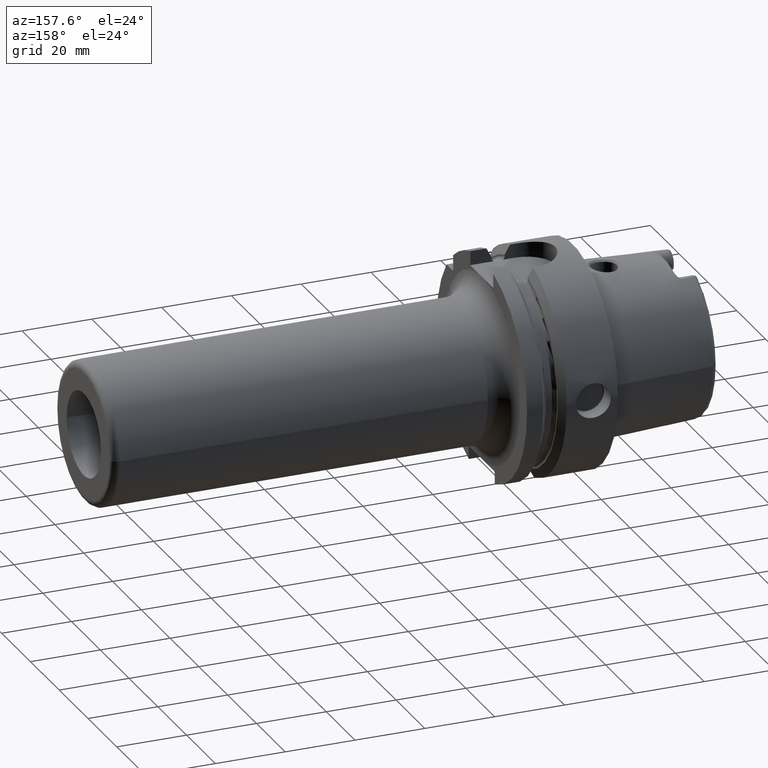
[diagram: clean part render]
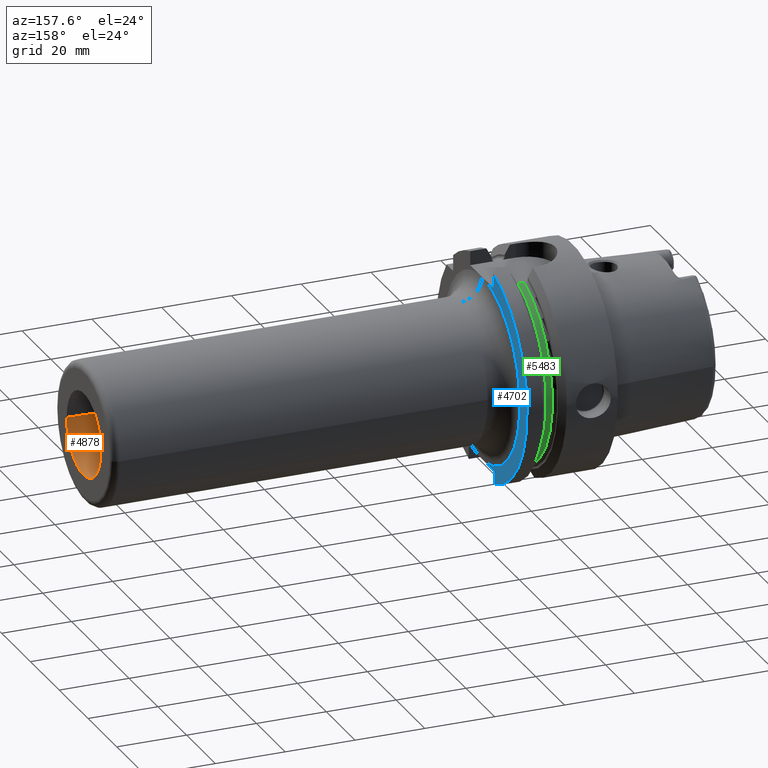
[diagram: same view with three faces highlighted in distinct colors, each labeled with its STEP entity id]
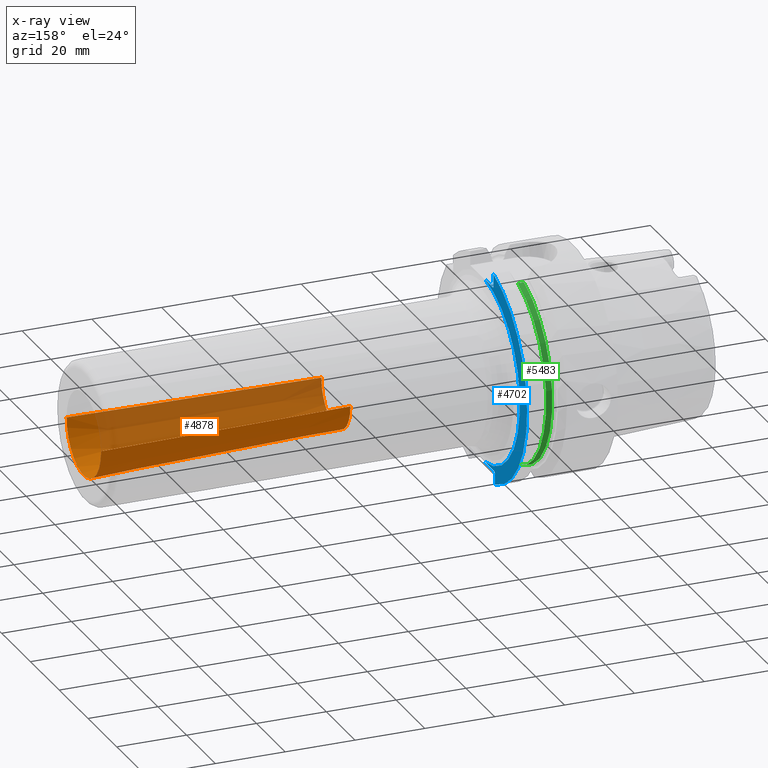
[diagram: x-ray of the same camera — body ghosted, the three highlighted faces saturated]
A machine part, auxiliary view with three faces highlighted in distinct colors.
The next image is the same camera in x-ray (body ghosted, the three faces saturated) — at least one of them is partly hidden behind the body in this view.
Their STEP definitions:

[orange] entity #4878 — the highlighted conical surface has half-angle 1.438 deg.
#1639=CARTESIAN_POINT('',(1.4E2,0.E0,0.E0));
#1640=DIRECTION('',(1.E0,0.E0,0.E0));
#1641=DIRECTION('',(0.E0,-1.E0,0.E0));
#1642=AXIS2_PLACEMENT_3D('',#1639,#1640,#1641);
#1644=DIRECTION('',(-9.996851534728E-1,2.509171030754E-2,0.E0));
#1645=VECTOR('',#1644,7.223501219267E1);
#1646=CARTESIAN_POINT('',(1.4E2,-1.19125E1,0.E0));
#1647=LINE('',#1646,#1645);
#1648=DIRECTION('',(-9.996851534728E-1,-2.509171030754E-2,0.E0));
#1649=VECTOR('',#1648,7.223501219267E1);
#1650=CARTESIAN_POINT('',(1.4E2,1.19125E1,0.E0));
#1651=LINE('',#1650,#1649);
#1656=CARTESIAN_POINT('',(6.778773075006E1,0.E0,0.E0));
#1657=DIRECTION('',(-1.E0,0.E0,0.E0));
#1658=DIRECTION('',(0.E0,1.E0,0.E0));
#1659=AXIS2_PLACEMENT_3D('',#1656,#1657,#1658);
#3109=CARTESIAN_POINT('',(6.778773075006E1,1.01E1,0.E0));
#3111=VERTEX_POINT('',#3109);
#3113=CARTESIAN_POINT('',(6.778773075006E1,-1.01E1,0.E0));
#3115=VERTEX_POINT('',#3113);
#3117=CARTESIAN_POINT('',(1.4E2,1.19125E1,0.E0));
#3118=CARTESIAN_POINT('',(1.4E2,-1.19125E1,0.E0));
#3119=VERTEX_POINT('',#3117);
#3120=VERTEX_POINT('',#3118);
#4866=CARTESIAN_POINT('',(1.038938653750E2,0.E0,0.E0));
#4867=DIRECTION('',(1.E0,0.E0,0.E0));
#4868=DIRECTION('',(0.E0,-1.E0,0.E0));
#4869=AXIS2_PLACEMENT_3D('',#4866,#4867,#4868);
#4870=CONICAL_SURFACE('',#4869,1.100625E1,1.4378E0);
#4871=ORIENTED_EDGE('',*,*,#4846,.F.);
#4872=ORIENTED_EDGE('',*,*,#4861,.T.);
#4874=ORIENTED_EDGE('',*,*,#4873,.F.);
#4875=ORIENTED_EDGE('',*,*,#4857,.F.);
#4876=EDGE_LOOP('',(#4871,#4872,#4874,#4875));
#4877=FACE_OUTER_BOUND('',#4876,.F.);
#4878=ADVANCED_FACE('',(#4877),#4870,.F.);
#1643=CIRCLE('',#1642,1.19125E1);
#1660=CIRCLE('',#1659,1.01E1);
#4846=EDGE_CURVE('',#3120,#3119,#1643,.T.);
#4857=EDGE_CURVE('',#3119,#3111,#1651,.T.);
#4861=EDGE_CURVE('',#3120,#3115,#1647,.T.);
#4873=EDGE_CURVE('',#3111,#3115,#1660,.T.);

[blue] entity #4702 — the highlighted planar face has unit normal (1, 0, 0).
#1343=DIRECTION('',(0.E0,7.071067811865E-1,-7.071067811866E-1));
#1344=VECTOR('',#1343,5.656854249492E-1);
#1345=CARTESIAN_POINT('',(2.6E1,8.6175E0,-2.64E1));
#1346=LINE('',#1345,#1344);
#1499=CARTESIAN_POINT('',(2.6E1,0.E0,0.E0));
#1500=DIRECTION('',(-1.E0,0.E0,0.E0));
#1501=DIRECTION('',(0.E0,8.679259900486E-2,9.962264023594E-1));
#1502=AXIS2_PLACEMENT_3D('',#1499,#1500,#1501);
#1504=DIRECTION('',(0.E0,1.E0,-5.947311325576E-8));
#1505=VECTOR('',#1504,5.717502602041E0);
#1506=CARTESIAN_POINT('',(2.6E1,2.299997397959E0,2.640000034004E1));
#1507=LINE('',#1506,#1505);
#1508=DIRECTION('',(0.E0,0.E0,-1.E0));
#1509=VECTOR('',#1508,4.062594993697E0);
#1510=CARTESIAN_POINT('',(2.6E1,8.0175E0,3.046259499370E1));
#1511=LINE('',#1510,#1509);
#1512=DIRECTION('',(0.E0,0.E0,1.E0));
#1513=VECTOR('',#1512,3.381694679888E0);
#1514=CARTESIAN_POINT('',(2.6E1,9.0175E0,-3.018169467989E1));
#1515=LINE('',#1514,#1513);
#1516=DIRECTION('',(0.E0,-1.E0,-4.445553790006E-8));
#1517=VECTOR('',#1516,6.317502154126E0);
#1518=CARTESIAN_POINT('',(2.6E1,8.6175E0,-2.64E1));
#1519=LINE('',#1518,#1517);
#1574=CARTESIAN_POINT('',(2.6E1,2.299997397959E0,2.640000034004E1));
#1724=CARTESIAN_POINT('',(2.6E1,0.E0,0.E0));
#1725=DIRECTION('',(1.E0,0.E0,0.E0));
#1726=DIRECTION('',(0.E0,2.862698412698E-1,-9.581490374568E-1));
#1727=AXIS2_PLACEMENT_3D('',#1724,#1725,#1726);
#2956=CARTESIAN_POINT('',(2.6E1,8.6175E0,-2.64E1));
#2957=CARTESIAN_POINT('',(2.6E1,9.0175E0,-2.68E1));
#2958=VERTEX_POINT('',#2956);
#2959=VERTEX_POINT('',#2957);
#3000=CARTESIAN_POINT('',(2.6E1,8.0175E0,2.64E1));
#3002=VERTEX_POINT('',#3000);
#3060=CARTESIAN_POINT('',(2.6E1,9.0175E0,-3.018169467989E1));
#3061=CARTESIAN_POINT('',(2.6E1,8.0175E0,3.046259499370E1));
#3062=VERTEX_POINT('',#3060);
#3063=VERTEX_POINT('',#3061);
#3128=VERTEX_POINT('',#1574);
#3129=CARTESIAN_POINT('',(2.6E1,2.299997845874E0,-2.640000028085E1));
#3130=VERTEX_POINT('',#3129);
#4685=CARTESIAN_POINT('',(2.6E1,0.E0,0.E0));
#4686=DIRECTION('',(1.E0,0.E0,0.E0));
#4687=DIRECTION('',(0.E0,-1.E0,0.E0));
#4688=AXIS2_PLACEMENT_3D('',#4685,#4686,#4687);
#4689=PLANE('',#4688);
#4690=ORIENTED_EDGE('',*,*,#4680,.F.);
#4692=ORIENTED_EDGE('',*,*,#4691,.T.);
#4694=ORIENTED_EDGE('',*,*,#4693,.F.);
#4696=ORIENTED_EDGE('',*,*,#4695,.F.);
#4697=ORIENTED_EDGE('',*,*,#4534,.T.);
#4698=ORIENTED_EDGE('',*,*,#4575,.F.);
#4699=ORIENTED_EDGE('',*,*,#4638,.T.);
#4700=EDGE_LOOP('',(#4690,#4692,#4694,#4696,#4697,#4698,#4699));
#4701=FACE_OUTER_BOUND('',#4700,.F.);
#4702=ADVANCED_FACE('',(#4701),#4689,.T.);
#1503=CIRCLE('',#1502,2.65E1);
#1728=CIRCLE('',#1727,3.15E1);
#4534=EDGE_CURVE('',#3062,#2959,#1515,.T.);
#4575=EDGE_CURVE('',#2958,#2959,#1346,.T.);
#4638=EDGE_CURVE('',#2958,#3130,#1519,.T.);
#4680=EDGE_CURVE('',#3128,#3130,#1503,.T.);
#4691=EDGE_CURVE('',#3128,#3002,#1507,.T.);
#4693=EDGE_CURVE('',#3063,#3002,#1511,.T.);
#4695=EDGE_CURVE('',#3062,#3063,#1728,.T.);

[green] entity #5483 — the highlighted cylindrical surface (partial cylindrical patch) has radius 27.5 mm, axis along (1, 0, 0).
#1242=CARTESIAN_POINT('',(1.7125E1,7.7E0,2.64E1));
#1390=CARTESIAN_POINT('',(1.8875E1,0.E0,0.E0));
#1391=DIRECTION('',(-1.E0,0.E0,0.E0));
#1392=DIRECTION('',(0.E0,2.8E-1,9.6E-1));
#1393=AXIS2_PLACEMENT_3D('',#1390,#1391,#1392);
#2128=DIRECTION('',(1.E0,0.E0,0.E0));
#2129=VECTOR('',#2128,1.75E0);
#2130=CARTESIAN_POINT('',(1.7125E1,7.7E0,-2.64E1));
#2131=LINE('',#2130,#2129);
#2132=DIRECTION('',(1.E0,0.E0,0.E0));
#2133=VECTOR('',#2132,1.75E0);
#2134=CARTESIAN_POINT('',(1.7125E1,7.7E0,2.64E1));
#2135=LINE('',#2134,#2133);
#2136=CARTESIAN_POINT('',(1.7125E1,0.E0,0.E0));
#2137=DIRECTION('',(-1.E0,0.E0,0.E0));
#2138=DIRECTION('',(0.E0,2.8E-1,9.6E-1));
#2139=AXIS2_PLACEMENT_3D('',#2136,#2137,#2138);
#3016=VERTEX_POINT('',#1242);
#3018=CARTESIAN_POINT('',(1.8875E1,7.7E0,2.64E1));
#3019=VERTEX_POINT('',#3018);
#3046=CARTESIAN_POINT('',(1.7125E1,7.7E0,-2.64E1));
#3047=CARTESIAN_POINT('',(1.8875E1,7.7E0,-2.64E1));
#3048=VERTEX_POINT('',#3046);
#3049=VERTEX_POINT('',#3047);
#5472=CARTESIAN_POINT('',(1.415E1,0.E0,0.E0));
#5473=DIRECTION('',(1.E0,0.E0,0.E0));
#5474=DIRECTION('',(0.E0,-1.E0,0.E0));
#5475=AXIS2_PLACEMENT_3D('',#5472,#5473,#5474);
#5476=CYLINDRICAL_SURFACE('',#5475,2.75E1);
#5477=ORIENTED_EDGE('',*,*,#4642,.T.);
#5478=ORIENTED_EDGE('',*,*,#4596,.F.);
#5479=ORIENTED_EDGE('',*,*,#4754,.F.);
#5480=ORIENTED_EDGE('',*,*,#4487,.T.);
#5481=EDGE_LOOP('',(#5477,#5478,#5479,#5480));
#5482=FACE_OUTER_BOUND('',#5481,.F.);
#5483=ADVANCED_FACE('',(#5482),#5476,.T.);
#1394=CIRCLE('',#1393,2.75E1);
#2140=CIRCLE('',#2139,2.75E1);
#4487=EDGE_CURVE('',#3016,#3048,#2140,.T.);
#4596=EDGE_CURVE('',#3019,#3049,#1394,.T.);
#4642=EDGE_CURVE('',#3048,#3049,#2131,.T.);
#4754=EDGE_CURVE('',#3016,#3019,#2135,.T.);